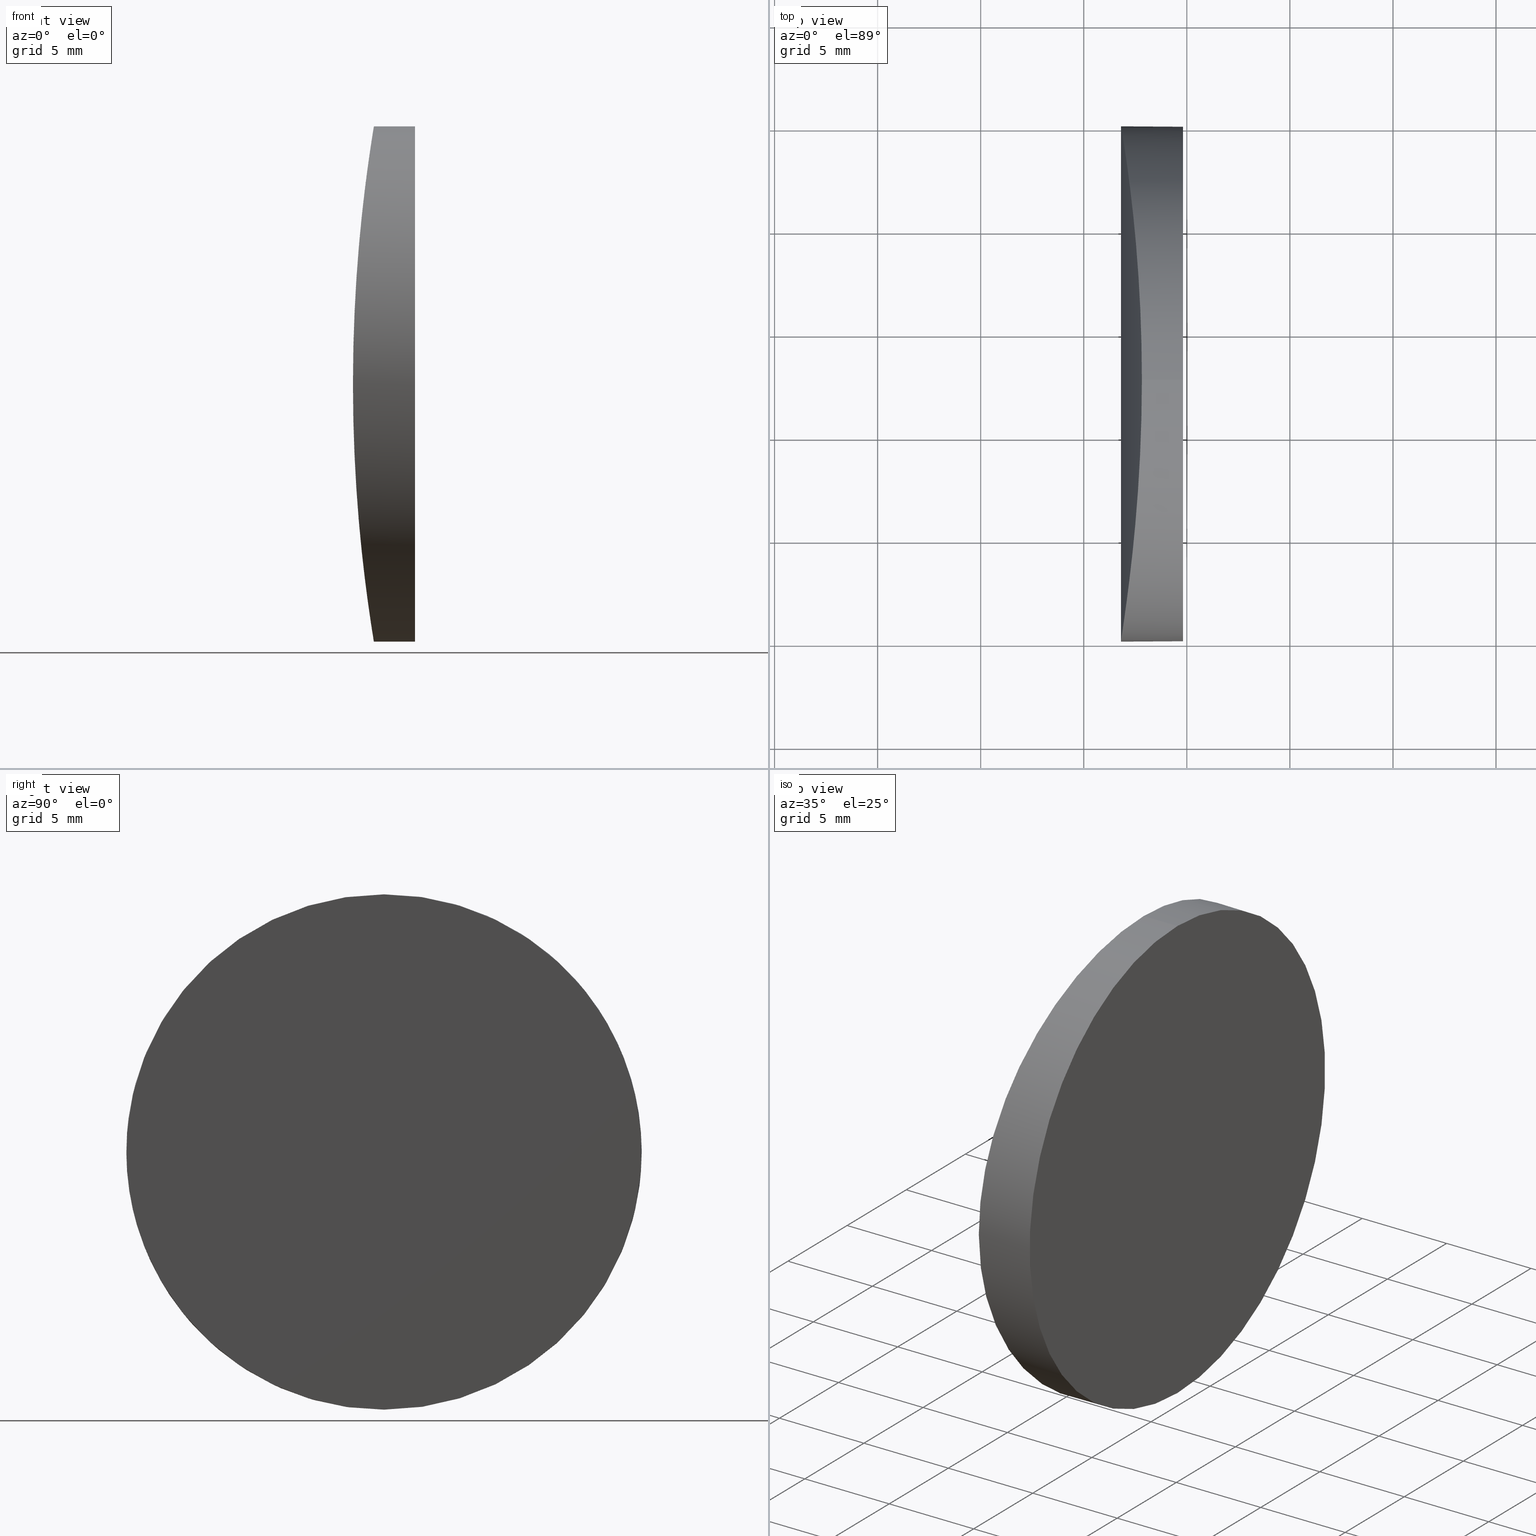
[diagram: canonical four-view strip — front | top / right | iso, engineering-drawing reading convention]
A machine part, canonical four-view strip (front | top / right | iso — engineering-drawing reading convention). The complete STEP part file that produces these views, byte-faithful:
ISO-10303-21;
HEADER;
FILE_DESCRIPTION (( 'STEP AP214' ),
    '1' );
FILE_NAME ('155043.STEP',
    '2019-06-18T02:38:33',
    ( 'user' ),
    ( '΢���й�' ),
    'SwSTEP 2.0',
    'SolidWorks 2016',
    '' );
FILE_SCHEMA (( 'AUTOMOTIVE_DESIGN' ));
ENDSEC;

DATA;
#1 = CARTESIAN_POINT ( 'NONE',  ( -72.30678608898401200, 16.91029251218120800, -11.70328451177788400 ) ) ;
#2 = CARTESIAN_POINT ( 'NONE',  ( -73.19479024020633100, 3.365634263945295400E-005, 0.8272612330974195000 ) ) ;
#3 = CARTESIAN_POINT ( 'NONE',  ( -72.75510945901565700, 21.91141421933060200, -8.266620765460565700 ) ) ;
#4 = DIRECTION ( 'NONE',  ( 0.0000000000000000000, 0.0000000000000000000, -1.000000000000000000 ) ) ;
#5 = CARTESIAN_POINT ( 'NONE',  ( -72.18075126772808400, 12.50000000000000200, 12.50000000000004400 ) ) ;
#6 = CARTESIAN_POINT ( 'NONE',  ( -73.02290290311748300, 1.113920124598635400, 5.174224095204879200 ) ) ;
#7 = CARTESIAN_POINT ( 'NONE',  ( -73.06946825877426500, 0.8016556116458195500, 4.423137855400947100 ) ) ;
#8 = CARTESIAN_POINT ( 'NONE',  ( -73.14388126027449700, 0.3196088867825761000, -2.837975170996625000 ) ) ;
#9 = MANIFOLD_SOLID_BREP ( '�г�-����8', #46 ) ;
#10 = CARTESIAN_POINT ( 'NONE',  ( -72.99735831451315000, 1.288271107547685400, 5.542009805114753700 ) ) ;
#11 = CARTESIAN_POINT ( 'NONE',  ( -72.65609786937471900, 3.951909727272846100, 9.129379828973254600 ) ) ;
#12 = CARTESIAN_POINT ( 'NONE',  ( -73.18158350461328600, 24.91876067520807300, 1.639653266634451700 ) ) ;
#13 = EDGE_CURVE ( 'NONE', #96, #184, #108, .T. ) ;
#14 = CARTESIAN_POINT ( 'NONE',  ( -72.37760210103618900, 6.955573037071926200, 11.23296398902917100 ) ) ;
#15 = SURFACE_STYLE_FILL_AREA ( #97 ) ;
#16 = CARTESIAN_POINT ( 'NONE',  ( -72.30677788462526200, 8.089850963481460200, 11.70333811599121700 ) ) ;
#17 =( GEOMETRIC_REPRESENTATION_CONTEXT ( 3 ) GLOBAL_UNCERTAINTY_ASSIGNED_CONTEXT ( ( #111 ) ) GLOBAL_UNIT_ASSIGNED_CONTEXT ( ( #160, #88, #95 ) ) REPRESENTATION_CONTEXT ( 'NONE', 'WORKASPACE' ) );
#18 = CARTESIAN_POINT ( 'NONE',  ( -72.52540855585337500, 5.220554526290888100, 10.16986255318126500 ) ) ;
#19 = CARTESIAN_POINT ( 'NONE',  ( -73.00003065117755300, 23.73281114413227800, 5.544742269999214400 ) ) ;
#20 = VECTOR ( 'NONE', #152, 1000.000000000000000 ) ;
#21 = ADVANCED_BREP_SHAPE_REPRESENTATION ( '155043', ( #9, #213 ), #17 ) ;
#22 = CARTESIAN_POINT ( 'NONE',  ( -72.82108713539724900, 22.42442941926004000, 7.610813232548915500 ) ) ;
#23 = FACE_OUTER_BOUND ( 'NONE', #138, .T. ) ;
#24 = CARTESIAN_POINT ( 'NONE',  ( -72.18075126772808400, 12.50000000000000000, -12.49999999999996800 ) ) ;
#25 = CARTESIAN_POINT ( 'NONE',  ( -73.19479392663205900, 24.99998921424268500, 0.8269456268418675600 ) ) ;
#26 = STYLED_ITEM ( 'NONE', ( #203 ), #21 ) ;
#27 = CARTESIAN_POINT ( 'NONE',  ( -72.28627585028264900, 16.53939135184523900, 11.83641043403679700 ) ) ;
#28 = CARTESIAN_POINT ( 'NONE',  ( -73.12734251551678700, 0.4249645742671749300, 3.257424683437522000 ) ) ;
#29 = B_SPLINE_CURVE_WITH_KNOTS ( 'NONE', 3,
 ( #41, #127, #39, #33, #34, #35, #16, #14, #31, #18, #104, #215, #11, #58, #59, #37, #52, #10, #6, #7, #87, #28, #55, #50, #2, #194, #60, #8, #172, #90, #94, #91, #120, #191, #117, #129, #130, #121, #139, #122, #126, #131, #133, #136, #142, #143, #145, #153, #155, #141 ),
 .UNSPECIFIED., .F., .F.,
 ( 4, 2, 2, 2, 2, 2, 2, 2, 2, 2, 2, 2, 2, 2, 2, 2, 2, 2, 2, 2, 2, 2, 2, 2, 4 ),
 ( 0.01955891054113898000, 0.02200375426975019800, 0.02322617613405580900, 0.02444859799836142000, 0.02689344172697264600, 0.02811586359127826000, 0.02933828545558386800, 0.03178312918419509700, 0.03300555104850071100, 0.03422797291280632600, 0.03545039477711194000, 0.03667281664141756200, 0.03911766037002879800, 0.04156250409864002700, 0.04278492596294564100, 0.04400734782725125600, 0.04645219155586249200, 0.04767461342016810600, 0.04889703528447372100, 0.05134187901308495700, 0.05256430087739057800, 0.05378672274169620000, 0.05500914460600181400, 0.05623156647030742900, 0.05867641019891867100 ),
 .UNSPECIFIED. ) ;
#30 = CARTESIAN_POINT ( 'NONE',  ( -73.12736518099446000, 24.57518074457672000, -3.256887927154162200 ) ) ;
#31 = CARTESIAN_POINT ( 'NONE',  ( -72.43348342716414800, 6.238465042056161800, 10.84937339165977100 ) ) ;
#32 = CARTESIAN_POINT ( 'NONE',  ( -72.55800094362753300, 20.13873505991239900, 9.928443976237804900 ) ) ;
#33 = CARTESIAN_POINT ( 'NONE',  ( -72.23232039414473600, 9.661695357452552800, 12.18031348295976600 ) ) ;
#34 = CARTESIAN_POINT ( 'NONE',  ( -72.24806421626553300, 9.265472153500901700, 12.08123658315379100 ) ) ;
#35 = CARTESIAN_POINT ( 'NONE',  ( -72.28525122181717700, 8.479944576385822300, 11.84304024138150900 ) ) ;
#36 = DIRECTION ( 'NONE',  ( 0.0000000000000000000, 0.0000000000000000000, -1.000000000000000000 ) ) ;
#37 = CARTESIAN_POINT ( 'NONE',  ( -72.91284019239425600, 1.886354224816853700, 6.615821568946486800 ) ) ;
#38 = CARTESIAN_POINT ( 'NONE',  ( -72.94457372899854900, 23.34918071398045600, 6.261872867493091900 ) ) ;
#39 = CARTESIAN_POINT ( 'NONE',  ( -72.19414069413790000, 10.86053640340764300, 12.41878408958609900 ) ) ;
#40 = CARTESIAN_POINT ( 'NONE',  ( -73.06949558486215300, 24.19852511736635800, -4.422661111471008200 ) ) ;
#41 = CARTESIAN_POINT ( 'NONE',  ( -72.18075126772808400, 12.50000000000000200, 12.50000000000004400 ) ) ;
#42 =( GEOMETRIC_REPRESENTATION_CONTEXT ( 3 ) GLOBAL_UNCERTAINTY_ASSIGNED_CONTEXT ( ( #195 ) ) GLOBAL_UNIT_ASSIGNED_CONTEXT ( ( #82, #61, #101 ) ) REPRESENTATION_CONTEXT ( 'NONE', 'WORKASPACE' ) );
#43 = ORIENTED_EDGE ( 'NONE', *, *, #83, .T. ) ;
#44 = CARTESIAN_POINT ( 'NONE',  ( -72.43561423602435000, 18.76147895765407000, 10.82638506068129100 ) ) ;
#45 = CYLINDRICAL_SURFACE ( 'NONE', #74, 77.54999999999998300 ) ;
#46 = CLOSED_SHELL ( 'NONE', ( #67, #114, #48, #222 ) ) ;
#47 = CARTESIAN_POINT ( 'NONE',  ( -72.99738850175374700, 23.71193703662316900, -5.541589619753150200 ) ) ;
#48 = ADVANCED_FACE ( 'NONE', ( #119 ), #164, .T. ) ;
#49 = B_SPLINE_CURVE_WITH_KNOTS ( 'NONE', 3,
 ( #85, #223, #218, #207, #56, #227, #1, #62, #179, #159, #149, #205, #92, #3, #68, #181, #100, #47, #70, #40, #168, #30, #201, #228, #116, #25, #12, #107, #80, #146, #106, #19, #38, #163, #22, #128, #175, #199, #32, #224, #44, #140, #154, #115, #27, #125, #156, #173, #113, #232 ),
 .UNSPECIFIED., .F., .F.,
 ( 4, 2, 2, 2, 2, 2, 2, 2, 2, 2, 2, 2, 2, 2, 2, 2, 2, 2, 2, 2, 2, 2, 2, 2, 4 ),
 ( -0.01955858910510549800, -0.01711374537721522100, -0.01589132351327008500, -0.01466890164932494800, -0.01222405792143467300, -0.01100163605748953100, -0.009779214193544388500, -0.007334370465654105300, -0.006111948601708962900, -0.004889526737763820500, -0.003667104873818674600, -0.002444683009873532100, 1.607180167562116700E-007, 0.002445004445907044500, 0.003667426309852190500, 0.004889848173797332900, 0.007334691901687607300, 0.008557113765632749800, 0.009779535629577885300, 0.01222437935746816300, 0.01344680122141330200, 0.01466922308535842700, 0.01589164494930356600, 0.01711406681324869800, 0.01955891054113897600 ),
 .UNSPECIFIED. ) ;
#50 = CARTESIAN_POINT ( 'NONE',  ( -73.18156997168505000, 0.08129048356195292500, 1.644530960302042400 ) ) ;
#51 = PRODUCT_DEFINITION_SHAPE ( 'NONE', 'NONE',  #166 ) ;
#52 = CARTESIAN_POINT ( 'NONE',  ( -72.94241029435046600, 1.673867555835961500, 6.261916139589934500 ) ) ;
#53 = FACE_OUTER_BOUND ( 'NONE', #63, .T. ) ;
#54 = CARTESIAN_POINT ( 'NONE',  ( -70.18479566514875500, 12.50000000000000200, 12.50000000000004400 ) ) ;
#55 = CARTESIAN_POINT ( 'NONE',  ( -73.14322756080264300, 0.3237602137179968500, 2.856377373567557100 ) ) ;
#56 = CARTESIAN_POINT ( 'NONE',  ( -72.24806867350720600, 15.73463492769521300, -12.08120840297679500 ) ) ;
#57 = ORIENTED_EDGE ( 'NONE', *, *, #77, .F. ) ;
#58 = CARTESIAN_POINT ( 'NONE',  ( -72.75508052703909800, 3.088823029920202400, 8.266888261447739700 ) ) ;
#59 = CARTESIAN_POINT ( 'NONE',  ( -72.82066662950993000, 2.571876037518833400, 7.639151869049857900 ) ) ;
#60 = CARTESIAN_POINT ( 'NONE',  ( -73.18159657106190300, 0.08115814238380901500, -1.639051519653276900 ) ) ;
#61 =( NAMED_UNIT ( * ) PLANE_ANGLE_UNIT ( ) SI_UNIT ( $, .RADIAN. ) );
#62 = CARTESIAN_POINT ( 'NONE',  ( -72.37761446591567000, 18.04460082481147900, -11.23288009906580100 ) ) ;
#63 = EDGE_LOOP ( 'NONE', ( #204, #231, #66, #200 ) ) ;
#64 = PRESENTATION_LAYER_ASSIGNMENT (  '', '', ( #189 ) ) ;
#65 = AXIS2_PLACEMENT_3D ( 'NONE', #124, #186, #169 ) ;
#66 = ORIENTED_EDGE ( 'NONE', *, *, #217, .T. ) ;
#67 = ADVANCED_FACE ( 'NONE', ( #23 ), #206, .T. ) ;
#68 = CARTESIAN_POINT ( 'NONE',  ( -72.82069716150613200, 22.42836106362571200, -7.638847140011247200 ) ) ;
#69 = PRODUCT_RELATED_PRODUCT_CATEGORY ( 'part', '', ( #185 ) ) ;
#70 = CARTESIAN_POINT ( 'NONE',  ( -73.02293232809422800, 23.88627971259513300, -5.173785416415539000 ) ) ;
#71 = CIRCLE ( 'NONE', #76, 12.50000000000000500 ) ;
#72 = FILL_AREA_STYLE_COLOUR ( '', #105 ) ;
#73 = APPLICATION_CONTEXT ( 'automotive_design' ) ;
#74 = AXIS2_PLACEMENT_3D ( 'NONE', #216, #197, #36 ) ;
#75 = ORIENTED_EDGE ( 'NONE', *, *, #81, .F. ) ;
#76 = AXIS2_PLACEMENT_3D ( 'NONE', #165, #230, #134 ) ;
#77 = EDGE_CURVE ( 'NONE', #148, #184, #71, .T. ) ;
#78 = SURFACE_SIDE_STYLE ('',( #220 ) ) ;
#79 = EDGE_LOOP ( 'NONE', ( #110, #43 ) ) ;
#80 = CARTESIAN_POINT ( 'NONE',  ( -73.12829989491021400, 24.58117447989285500, 3.234761795152280700 ) ) ;
#81 = EDGE_CURVE ( 'NONE', #86, #96, #49, .T. ) ;
#82 =( LENGTH_UNIT ( ) NAMED_UNIT ( * ) SI_UNIT ( .MILLI., .METRE. ) );
#83 = EDGE_CURVE ( 'NONE', #184, #148, #226, .T. ) ;
#84 = SURFACE_STYLE_USAGE ( .BOTH. , #78 ) ;
#85 = CARTESIAN_POINT ( 'NONE',  ( -72.18075126772808400, 12.50000000000000000, -12.49999999999996800 ) ) ;
#86 = VERTEX_POINT ( 'NONE', #24 ) ;
#87 = CARTESIAN_POINT ( 'NONE',  ( -73.09049015335486400, 0.6637417705686805600, 4.039837524850496700 ) ) ;
#88 =( NAMED_UNIT ( * ) PLANE_ANGLE_UNIT ( ) SI_UNIT ( $, .RADIAN. ) );
#89 = SURFACE_SIDE_STYLE ('',( #15 ) ) ;
#90 = CARTESIAN_POINT ( 'NONE',  ( -73.09154016303938300, 0.6568762890859124500, -4.019812315072401000 ) ) ;
#91 = CARTESIAN_POINT ( 'NONE',  ( -73.00006110441758300, 1.266979637682703400, -5.544323060005694100 ) ) ;
#92 = CARTESIAN_POINT ( 'NONE',  ( -72.65612361631656300, 21.04832228318072000, -9.129163174399716100 ) ) ;
#93 = CARTESIAN_POINT ( 'NONE',  ( -82.88479566514875800, 12.50000000000000000, 4.248534616621488200E-014 ) ) ;
#94 = CARTESIAN_POINT ( 'NONE',  ( -73.07023363483141100, 0.7965823958424501600, -4.409941331376359100 ) ) ;
#95 =( NAMED_UNIT ( * ) SI_UNIT ( $, .STERADIAN. ) SOLID_ANGLE_UNIT ( ) );
#96 = VERTEX_POINT ( 'NONE', #5 ) ;
#97 = FILL_AREA_STYLE ('',( #188 ) ) ;
#98 = LINE ( 'NONE', #161, #20 ) ;
#99 = AXIS2_PLACEMENT_3D ( 'NONE', #170, #157, #158 ) ;
#100 = CARTESIAN_POINT ( 'NONE',  ( -72.94244149466837300, 23.32635508162653400, -6.261532022875649700 ) ) ;
#101 =( NAMED_UNIT ( * ) SI_UNIT ( $, .STERADIAN. ) SOLID_ANGLE_UNIT ( ) );
#102 = CARTESIAN_POINT ( 'NONE',  ( -70.18479566514875500, 12.50000000000000000, -12.49999999999996800 ) ) ;
#103 = MECHANICAL_DESIGN_GEOMETRIC_PRESENTATION_REPRESENTATION (  '', ( #189 ), #42 ) ;
#104 = CARTESIAN_POINT ( 'NONE',  ( -72.55754996141003200, 4.889541541543474400, 9.924700774417646100 ) ) ;
#105 = COLOUR_RGB ( '',1.000000000000000000, 1.000000000000000000, 1.000000000000000000 ) ;
#106 = CARTESIAN_POINT ( 'NONE',  ( -73.07020609781699200, 24.20323554753725800, 4.410422993203167300 ) ) ;
#107 = CARTESIAN_POINT ( 'NONE',  ( -73.14386097685162700, 24.68026215847101700, 2.838526666536572900 ) ) ;
#108 = LINE ( 'NONE', #180, #219 ) ;
#109 = DIRECTION ( 'NONE',  ( 1.000000000000000000, 0.0000000000000000000, 0.0000000000000000000 ) ) ;
#110 = ORIENTED_EDGE ( 'NONE', *, *, #77, .T. ) ;
#111 = UNCERTAINTY_MEASURE_WITH_UNIT (LENGTH_MEASURE( 1.000000000000000100E-005 ), #160, 'distance_accuracy_value', 'NONE');
#112 = MECHANICAL_DESIGN_GEOMETRIC_PRESENTATION_REPRESENTATION (  '', ( #26 ), #193 ) ;
#113 = CARTESIAN_POINT ( 'NONE',  ( -72.18075126772808400, 13.32677285387385700, 12.50000000000004300 ) ) ;
#114 = ADVANCED_FACE ( 'NONE', ( #208 ), #45, .T. ) ;
#115 = CARTESIAN_POINT ( 'NONE',  ( -72.30751301810248300, 16.92269299731063000, 11.69851239935170800 ) ) ;
#116 = CARTESIAN_POINT ( 'NONE',  ( -73.19479740332255300, 25.00001078363043700, -0.8266195225489448900 ) ) ;
#117 = CARTESIAN_POINT ( 'NONE',  ( -72.82111782563789900, 2.575331914406304700, -7.610502856439888200 ) ) ;
#118 = CYLINDRICAL_SURFACE ( 'NONE', #99, 12.50000000000000500 ) ;
#119 = FACE_OUTER_BOUND ( 'NONE', #79, .T. ) ;
#120 = CARTESIAN_POINT ( 'NONE',  ( -72.94460489093653200, 1.650597612918614000, -6.261492095585815300 ) ) ;
#121 = CARTESIAN_POINT ( 'NONE',  ( -72.62378589658011700, 4.233274643347133500, -9.411324140239653200 ) ) ;
#122 = CARTESIAN_POINT ( 'NONE',  ( -72.46538602251698100, 5.884411318093672300, -10.61379126797545800 ) ) ;
#123 = PRODUCT_DEFINITION_CONTEXT ( 'detailed design', #212, 'design' ) ;
#124 = CARTESIAN_POINT ( 'NONE',  ( -70.18479566514875500, 25.00000000000000000, -12.49999999999999300 ) ) ;
#125 = CARTESIAN_POINT ( 'NONE',  ( -72.24902321278473500, 15.75697339489889600, 12.07515709054163500 ) ) ;
#126 = CARTESIAN_POINT ( 'NONE',  ( -72.43562987437032100, 6.238328715725257800, -10.82627437013393000 ) ) ;
#127 = CARTESIAN_POINT ( 'NONE',  ( -72.18075126772808400, 11.67322714588234500, 12.50000000000004600 ) ) ;
#128 = CARTESIAN_POINT ( 'NONE',  ( -72.75580201664846000, 21.90327787200550300, 8.246037995332518000 ) ) ;
#129 = CARTESIAN_POINT ( 'NONE',  ( -72.75583100376312000, 3.096484413655286700, -8.245767699520385500 ) ) ;
#130 = CARTESIAN_POINT ( 'NONE',  ( -72.72277341238908800, 3.370721201980951600, -8.548199294400300000 ) ) ;
#131 = CARTESIAN_POINT ( 'NONE',  ( -72.38028024256242100, 6.958258211117377600, -11.21186166321550800 ) ) ;
#132 = FILL_AREA_STYLE ('',( #72 ) ) ;
#133 = CARTESIAN_POINT ( 'NONE',  ( -72.35451940406684900, 7.326055140193141700, -11.38620707068658400 ) ) ;
#134 = DIRECTION ( 'NONE',  ( 0.0000000000000000000, 0.0000000000000000000, -1.000000000000000000 ) ) ;
#135 = DIRECTION ( 'NONE',  ( 1.000000000000000000, -0.0000000000000000000, -2.775557561562888400E-016 ) ) ;
#136 = CARTESIAN_POINT ( 'NONE',  ( -72.30752115662630800, 8.077165038933943100, -11.69845920521359700 ) ) ;
#137 = DIRECTION ( 'NONE',  ( 0.0000000000000000000, 0.0000000000000000000, -1.000000000000000000 ) ) ;
#138 = EDGE_LOOP ( 'NONE', ( #147, #210, #57, #192 ) ) ;
#139 = CARTESIAN_POINT ( 'NONE',  ( -72.55802267007311500, 4.861045141816232400, -9.928276961684211700 ) ) ;
#140 = CARTESIAN_POINT ( 'NONE',  ( -72.38026777358429300, 18.04156851951723800, 11.21194677844945700 ) ) ;
#141 = CARTESIAN_POINT ( 'NONE',  ( -72.18075126772808400, 12.50000000000000000, -12.49999999999996800 ) ) ;
#142 = CARTESIAN_POINT ( 'NONE',  ( -72.28628268703190000, 8.460477811611147200, -11.83636624621881100 ) ) ;
#143 = CARTESIAN_POINT ( 'NONE',  ( -72.24902772716329500, 9.242919037546055700, -12.07512853054301500 ) ) ;
#144 = DIRECTION ( 'NONE',  ( 1.000000000000000000, -0.0000000000000000000, -2.775557561562888400E-016 ) ) ;
#145 = CARTESIAN_POINT ( 'NONE',  ( -72.23295605324153700, 9.643982761424171100, -12.17632484023898000 ) ) ;
#146 = CARTESIAN_POINT ( 'NONE',  ( -73.09151400925642900, 24.34295281429810100, 4.020314580141719500 ) ) ;
#147 = ORIENTED_EDGE ( 'NONE', *, *, #81, .T. ) ;
#148 = VERTEX_POINT ( 'NONE', #102 ) ;
#149 = CARTESIAN_POINT ( 'NONE',  ( -72.55757194141206400, 20.11068073122745800, -9.924530842332616800 ) ) ;
#150 = PRODUCT_DEFINITION_FORMATION_WITH_SPECIFIED_SOURCE ( '�κ�', '', #185, .NOT_KNOWN. ) ;
#151 = AXIS2_PLACEMENT_3D ( 'NONE', #93, #135, #137 ) ;
#152 = DIRECTION ( 'NONE',  ( 1.000000000000000000, -0.0000000000000000000, -2.775557561562888400E-016 ) ) ;
#153 = CARTESIAN_POINT ( 'NONE',  ( -72.19414913564590100, 10.85588683772640700, -12.41876709814197200 ) ) ;
#154 = CARTESIAN_POINT ( 'NONE',  ( -72.35450844951741100, 17.67378167977026500, 11.38628072885608200 ) ) ;
#155 = CARTESIAN_POINT ( 'NONE',  ( -72.18075126772808400, 11.67319915505607900, -12.49999999999996800 ) ) ;
#156 = CARTESIAN_POINT ( 'NONE',  ( -72.23295256559356400, 15.35592182557840400, 12.17634673994810200 ) ) ;
#157 = DIRECTION ( 'NONE',  ( 1.000000000000000000, -0.0000000000000000000, -2.775557561562888400E-016 ) ) ;
#158 = DIRECTION ( 'NONE',  ( 0.0000000000000000000, 0.0000000000000000000, -1.000000000000000000 ) ) ;
#159 = CARTESIAN_POINT ( 'NONE',  ( -72.52542881517702300, 19.77965978065809300, -10.16970973275058800 ) ) ;
#160 =( LENGTH_UNIT ( ) NAMED_UNIT ( * ) SI_UNIT ( .MILLI., .METRE. ) );
#161 = CARTESIAN_POINT ( 'NONE',  ( -82.88479566514875800, 12.50000000000000000, -12.49999999999996400 ) ) ;
#162 = COLOUR_RGB ( '',1.000000000000000000, 1.000000000000000000, 1.000000000000000000 ) ;
#163 = CARTESIAN_POINT ( 'NONE',  ( -72.85310531331359100, 22.66960973134889600, 7.279799544312139900 ) ) ;
#164 = PLANE ( 'NONE',  #65 ) ;
#165 = CARTESIAN_POINT ( 'NONE',  ( -70.18479566514875500, 12.50000000000000000, 3.896038806303001600E-014 ) ) ;
#166 = PRODUCT_DEFINITION ( 'δ֪', '', #150, #123 ) ;
#167 = EDGE_LOOP ( 'NONE', ( #75, #225 ) ) ;
#168 = CARTESIAN_POINT ( 'NONE',  ( -73.09051614301714000, 24.33642815939256100, -4.039341210120504400 ) ) ;
#169 = DIRECTION ( 'NONE',  ( -5.551115123125783700E-016, 0.0000000000000000000, -1.000000000000000000 ) ) ;
#170 = CARTESIAN_POINT ( 'NONE',  ( -82.88479566514875800, 12.50000000000000000, 4.248534616621488200E-014 ) ) ;
#171 =( LENGTH_UNIT ( ) NAMED_UNIT ( * ) SI_UNIT ( .MILLI., .METRE. ) );
#172 = CARTESIAN_POINT ( 'NONE',  ( -73.12832230906795400, 0.4186818976817636700, -3.234226830483747200 ) ) ;
#173 = CARTESIAN_POINT ( 'NONE',  ( -72.19414822829806200, 14.14405781649269400, 12.41877254470284200 ) ) ;
#174 =( NAMED_UNIT ( * ) PLANE_ANGLE_UNIT ( ) SI_UNIT ( $, .RADIAN. ) );
#175 = CARTESIAN_POINT ( 'NONE',  ( -72.72274545320021800, 21.62904266192292000, 8.548450793585450600 ) ) ;
#176 = SURFACE_STYLE_USAGE ( .BOTH. , #89 ) ;
#177 = PRODUCT_CONTEXT ( 'NONE', #73, 'mechanical' ) ;
#178 =( NAMED_UNIT ( * ) SI_UNIT ( $, .STERADIAN. ) SOLID_ANGLE_UNIT ( ) );
#179 = CARTESIAN_POINT ( 'NONE',  ( -72.43349892764814500, 18.76172664908046200, -10.84926493612952700 ) ) ;
#180 = CARTESIAN_POINT ( 'NONE',  ( -82.88479566514875800, 12.50000000000000200, 12.50000000000004800 ) ) ;
#181 = CARTESIAN_POINT ( 'NONE',  ( -72.91287173421331100, 23.11387534425187300, -6.615454250180119000 ) ) ;
#182 = EDGE_CURVE ( 'NONE', #96, #86, #29, .T. ) ;
#183 = PRESENTATION_STYLE_ASSIGNMENT (( #84 ) ) ;
#184 = VERTEX_POINT ( 'NONE', #54 ) ;
#185 = PRODUCT ( '155043', '155043', '', ( #177 ) ) ;
#186 = DIRECTION ( 'NONE',  ( 1.000000000000000000, 0.0000000000000000000, -5.551115123125783700E-016 ) ) ;
#187 = AXIS2_PLACEMENT_3D ( 'NONE', #221, #211, #4 ) ;
#188 = FILL_AREA_STYLE_COLOUR ( '', #162 ) ;
#189 = STYLED_ITEM ( 'NONE', ( #183 ), #9 ) ;
#190 = APPLICATION_PROTOCOL_DEFINITION ( 'draft international standard', 'automotive_design', 1998, #73 ) ;
#191 = CARTESIAN_POINT ( 'NONE',  ( -72.85313618270114900, 2.330156002783080100, -7.279472984168796400 ) ) ;
#192 = ORIENTED_EDGE ( 'NONE', *, *, #217, .F. ) ;
#193 =( GEOMETRIC_REPRESENTATION_CONTEXT ( 3 ) GLOBAL_UNCERTAINTY_ASSIGNED_CONTEXT ( ( #214 ) ) GLOBAL_UNIT_ASSIGNED_CONTEXT ( ( #171, #174, #178 ) ) REPRESENTATION_CONTEXT ( 'NONE', 'WORKASPACE' ) );
#194 = CARTESIAN_POINT ( 'NONE',  ( -73.19480108675415400, -3.363564001587843500E-005, -0.8262438188699158200 ) ) ;
#195 = UNCERTAINTY_MEASURE_WITH_UNIT (LENGTH_MEASURE( 1.000000000000000100E-005 ), #82, 'distance_accuracy_value', 'NONE');
#196 = DIRECTION ( 'NONE',  ( 0.0000000000000000000, 0.0000000000000000000, 1.000000000000000000 ) ) ;
#197 = DIRECTION ( 'NONE',  ( -0.0000000000000000000, -1.000000000000000000, -0.0000000000000000000 ) ) ;
#198 = APPLICATION_PROTOCOL_DEFINITION ( 'draft international standard', 'automotive_design', 1998, #212 ) ;
#199 = CARTESIAN_POINT ( 'NONE',  ( -72.62376138644431500, 20.76649678495629200, 9.411522431495708200 ) ) ;
#200 = ORIENTED_EDGE ( 'NONE', *, *, #83, .F. ) ;
#201 = CARTESIAN_POINT ( 'NONE',  ( -73.14324822485953300, 24.67637119973830200, -2.855818907536825400 ) ) ;
#202 = PRESENTATION_LAYER_ASSIGNMENT (  '', '', ( #26 ) ) ;
#203 = PRESENTATION_STYLE_ASSIGNMENT (( #176 ) ) ;
#204 = ORIENTED_EDGE ( 'NONE', *, *, #13, .F. ) ;
#205 = CARTESIAN_POINT ( 'NONE',  ( -72.62302409959075100, 20.74590562493182900, -9.403393752141074200 ) ) ;
#206 = CYLINDRICAL_SURFACE ( 'NONE', #151, 12.50000000000000500 ) ;
#207 = CARTESIAN_POINT ( 'NONE',  ( -72.23232381875293100, 15.33839888531332600, -12.18029198544170900 ) ) ;
#208 = FACE_OUTER_BOUND ( 'NONE', #167, .T. ) ;
#209 = CARTESIAN_POINT ( 'NONE',  ( 0.0000000000000000000, 0.0000000000000000000, 0.0000000000000000000 ) ) ;
#210 = ORIENTED_EDGE ( 'NONE', *, *, #13, .T. ) ;
#211 = DIRECTION ( 'NONE',  ( 1.000000000000000000, -9.860761315262647600E-032, -5.020649129782504900E-016 ) ) ;
#212 = APPLICATION_CONTEXT ( 'automotive_design' ) ;
#213 = AXIS2_PLACEMENT_3D ( 'NONE', #209, #196, #109 ) ;
#214 = UNCERTAINTY_MEASURE_WITH_UNIT (LENGTH_MEASURE( 1.000000000000000100E-005 ), #171, 'distance_accuracy_value', 'NONE');
#215 = CARTESIAN_POINT ( 'NONE',  ( -72.62299954744396800, 4.254323711480782100, 9.403594310399114400 ) ) ;
#216 = CARTESIAN_POINT ( 'NONE',  ( 4.355204334851265500, 25.00000000000000000, 4.286263797015675000E-017 ) ) ;
#217 = EDGE_CURVE ( 'NONE', #86, #148, #98, .T. ) ;
#218 = CARTESIAN_POINT ( 'NONE',  ( -72.19414160054041900, 14.13951863313306500, -12.41877864295301100 ) ) ;
#219 = VECTOR ( 'NONE', #144, 1000.000000000000000 ) ;
#220 = SURFACE_STYLE_FILL_AREA ( #132 ) ;
#221 = CARTESIAN_POINT ( 'NONE',  ( -70.18479566514875500, 12.50000000000000000, 3.896038806303001600E-014 ) ) ;
#222 = ADVANCED_FACE ( 'NONE', ( #53 ), #118, .T. ) ;
#223 = CARTESIAN_POINT ( 'NONE',  ( -72.18075126772808400, 13.32680084470011100, -12.49999999999997300 ) ) ;
#224 = CARTESIAN_POINT ( 'NONE',  ( -72.46536866027831500, 19.11538676696719800, 10.61391662863633700 ) ) ;
#225 = ORIENTED_EDGE ( 'NONE', *, *, #182, .F. ) ;
#226 = CIRCLE ( 'NONE', #187, 12.50000000000000500 ) ;
#227 = CARTESIAN_POINT ( 'NONE',  ( -72.28525809552240800, 16.52018769013162500, -11.84299584259561700 ) ) ;
#228 = CARTESIAN_POINT ( 'NONE',  ( -73.18158315715416500, 24.91879142093488800, -1.643924739505893400 ) ) ;
#229 = SHAPE_DEFINITION_REPRESENTATION ( #51, #21 ) ;
#230 = DIRECTION ( 'NONE',  ( 1.000000000000000000, -9.860761315262647600E-032, -5.020649129782504900E-016 ) ) ;
#231 = ORIENTED_EDGE ( 'NONE', *, *, #182, .T. ) ;
#232 = CARTESIAN_POINT ( 'NONE',  ( -72.18075126772808400, 12.50000000000000200, 12.50000000000004400 ) ) ;
ENDSEC;
END-ISO-10303-21;
